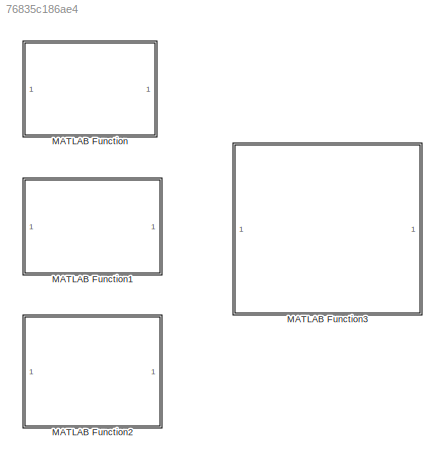
MODEL slx_76835c186ae4
KIND model
CONFIG AbsTol = auto
CONFIG EnableMultiTasking = off
CONFIG FixedStep = auto
CONFIG MaxStep = auto
CONFIG MinStep = auto
CONFIG RelTol = 1e-3
CONFIG SampleTimeConstraint = Unconstrained
CONFIG SolverName = VariableStepAuto
CONFIG StartTime = 0.0
CONFIG StopTime = 10.0
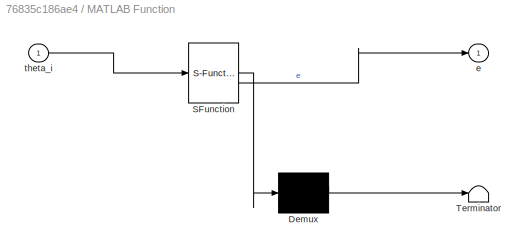
BLOCK [SubSystem] MATLAB Function
  ErrorFcn = Stateflow.Translate.translate
  LibrarySourceBlock = simulink/User-Defined\nFunctions/MATLAB Function
  PermitHierarchicalResolution = ExplicitOnly
  SFBlockType = MATLAB Function
  TreatAsAtomicUnit = on
BLOCK [Demux] MATLAB Function/ Demux 
  Outputs = 1
BLOCK [S-Function] MATLAB Function/ SFunction 
  EnableBusSupport = off
  FunctionName = sf_sfun
  PortCounts = [1 2]
  SFcnIsStateOwnerBlock = off
  SFunctionDeploymentMode = off
  Tag = Stateflow S-Function 2
BLOCK [Terminator] MATLAB Function/ Terminator 
BLOCK [Outport] MATLAB Function/e
BLOCK [Inport] MATLAB Function/theta_i
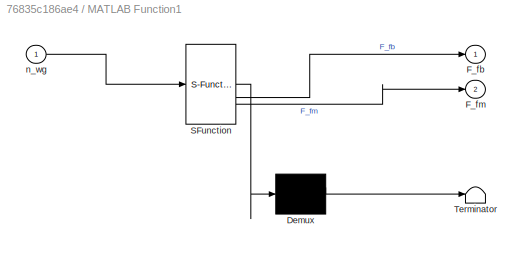
BLOCK [SubSystem] MATLAB Function1
  ErrorFcn = Stateflow.Translate.translate
  LibrarySourceBlock = simulink/User-Defined\nFunctions/MATLAB Function
  PermitHierarchicalResolution = ExplicitOnly
  SFBlockType = MATLAB Function
  TreatAsAtomicUnit = on
BLOCK [Demux] MATLAB Function1/ Demux 
  Outputs = 1
BLOCK [S-Function] MATLAB Function1/ SFunction 
  EnableBusSupport = off
  FunctionName = sf_sfun
  PortCounts = [1 3]
  SFcnIsStateOwnerBlock = off
  SFunctionDeploymentMode = off
  Tag = Stateflow S-Function 1
BLOCK [Terminator] MATLAB Function1/ Terminator 
BLOCK [Outport] MATLAB Function1/F_fb
BLOCK [Outport] MATLAB Function1/F_fm
  Port = 2
BLOCK [Inport] MATLAB Function1/n_wg
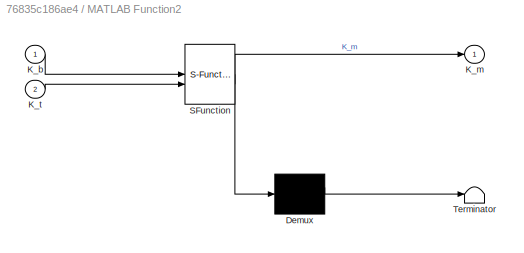
BLOCK [SubSystem] MATLAB Function2
  ErrorFcn = Stateflow.Translate.translate
  LibrarySourceBlock = simulink/User-Defined\nFunctions/MATLAB Function
  PermitHierarchicalResolution = ExplicitOnly
  SFBlockType = MATLAB Function
  TreatAsAtomicUnit = on
BLOCK [Demux] MATLAB Function2/ Demux 
  Outputs = 1
BLOCK [S-Function] MATLAB Function2/ SFunction 
  EnableBusSupport = off
  FunctionName = sf_sfun
  PortCounts = [2 2]
  SFcnIsStateOwnerBlock = off
  SFunctionDeploymentMode = off
  Tag = Stateflow S-Function 3
BLOCK [Terminator] MATLAB Function2/ Terminator 
BLOCK [Inport] MATLAB Function2/K_b
BLOCK [Outport] MATLAB Function2/K_m
BLOCK [Inport] MATLAB Function2/K_t
  Port = 2
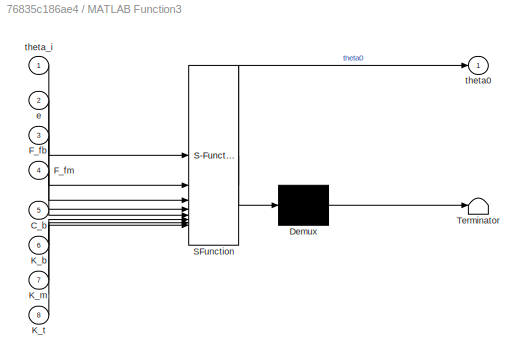
BLOCK [SubSystem] MATLAB Function3
  ErrorFcn = Stateflow.Translate.translate
  LibrarySourceBlock = simulink/User-Defined\nFunctions/MATLAB Function
  PermitHierarchicalResolution = ExplicitOnly
  SFBlockType = MATLAB Function
  TreatAsAtomicUnit = on
BLOCK [Demux] MATLAB Function3/ Demux 
  Outputs = 1
BLOCK [S-Function] MATLAB Function3/ SFunction 
  EnableBusSupport = off
  FunctionName = sf_sfun
  PortCounts = [8 2]
  SFcnIsStateOwnerBlock = off
  SFunctionDeploymentMode = off
  Tag = Stateflow S-Function 4
BLOCK [Terminator] MATLAB Function3/ Terminator 
BLOCK [Inport] MATLAB Function3/C_b
  Port = 5
BLOCK [Inport] MATLAB Function3/F_fb
  Port = 3
BLOCK [Inport] MATLAB Function3/F_fm
  Port = 4
BLOCK [Inport] MATLAB Function3/K_b
  Port = 6
BLOCK [Inport] MATLAB Function3/K_m
  Port = 7
BLOCK [Inport] MATLAB Function3/K_t
  Port = 8
BLOCK [Inport] MATLAB Function3/e
  Port = 2
BLOCK [Outport] MATLAB Function3/theta0
BLOCK [Inport] MATLAB Function3/theta_i
CHART MATLAB Function1 states=1 transitions=1
  STATE_LABEL 'eML_blk_kernel()'
  STATE_LABEL 'SCRIPT:\nfunction [F_fb, F_fm] = FrictionModel(n_wg)\n\nr_g = 0.03525;\nalpha_t = 20;\nf0 = 1.45;\nv0 = 8e-5;\nd_m = 0.058;\nF_c = 6.43;\nc = 6.72e-4;\n\nc_si = c * 60 / (2 * pi);\nalpha_t_rad = alpha_t * pi / 180;\n\n\nF_fb = 1e-7 * f0 * (v0 * n_wg)^(2/3) * d_m^3 * sign(n_wg) / r_g;\n\nF_fm = (F_c + c_si * n_wg) * sign(n_wg);\n\nT_f = F_fb * r_g + F_fm * r_g * sin(alpha_t_rad);\n'
CHART MATLAB Function states=1 transitions=1
  STATE_LABEL 'eML_blk_kernel()'
  STATE_LABEL 'SCRIPT:\nfunction e = KinematicErrorModel(theta_i)\n\na0 = 0.4615e-3;\na1 = 0.2057e-3;\na2 = 0.011e-3;\nb1 = 4.5e-3;\nb2 = -1e-3;\nw1 = 2;\nw2 = 4;\nr_g = 0.03525;\nalpha_t = 20;\n\ntheta_i_rad = theta_i * pi / 180;\nalpha_t_rad = alpha_t * pi / 180;\n\n\ntheta_ke_rec = (a0 / 2 + a1 * cos(w1 * theta_i_rad) + a2 * cos(w2 * theta_i_rad) + b1 * sin(w1 * theta_i_rad) + b2 * sin(w2 * theta_i_rad)) * pi / 180;\n\ne = thet...<+35ch>'
CHART MATLAB Function2 states=1 transitions=1
  STATE_LABEL 'eML_blk_kernel()'
  STATE_LABEL 'SCRIPT:\nfunction K_m = StiffnessModel(K_b, K_t)\n\nr_g = 0.03525;\nalpha_t = 20;\ng1 = 1.756e-5;\ng2 = 1.95e-5;\n\nalpha_t_rad = alpha_t * pi / 180;\n\n\nT0 = K_t * (y_1 - y_2) / r_g;\n\ndelta_theta0 = g1 * T0^(1/3) + g2 * T0;\n\nf_t = 1 / K_t;\n\nf_b = 1 / (K_b * r_g^2 * cot(alpha_t_rad)^2);\n\nf_m = g1 / (3 * T0^(2/3)) + g2 - f_t - f_b;\n\nK_m = 1 / (f_m * r_g^2 * cos(alpha_t_rad)^2);\n\nf_HD = f_m + f_t + f_b;\n'
CHART MATLAB Function3 states=1 transitions=1
  STATE_LABEL 'eML_blk_kernel()'
  STATE_LABEL 'SCRIPT:\nfunction theta0 = HarmonicDriveModel(theta_i, e, F_fb, F_fm, C_b, K_b, K_m, K_t)\n\nr_g = 0.03525;\nN = 50;\nalpha_t = 20;\nJ_g = 2.57e-7;\nJ_o = 2.55e-3;\n\n\n'
CHART  states=0 transitions=0
CHART  states=0 transitions=0
CHART  states=0 transitions=0
CHART  states=0 transitions=0
